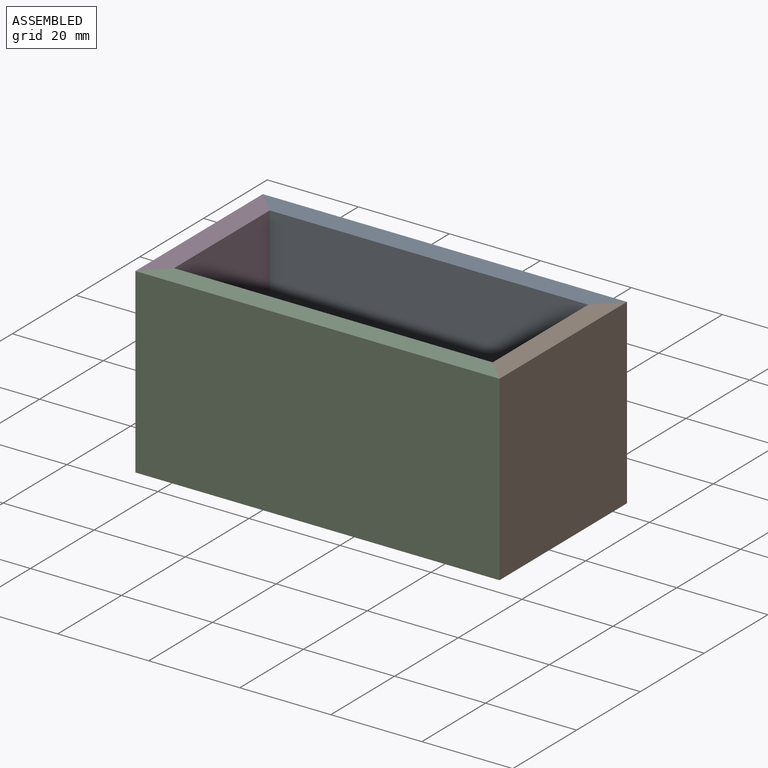
[diagram: assembled view]
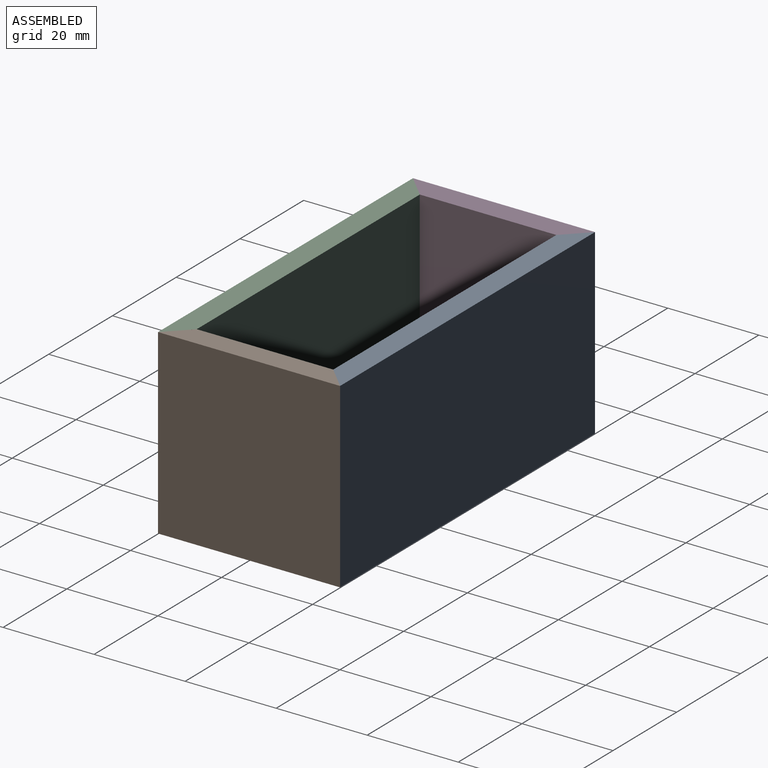
[diagram: assembled view, second angle]
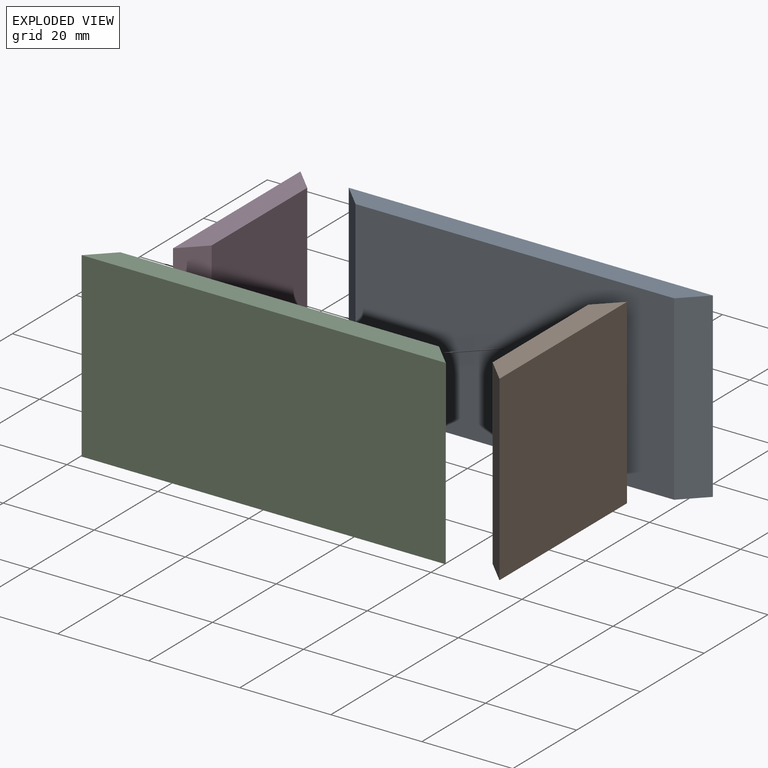
[diagram: exploded view]
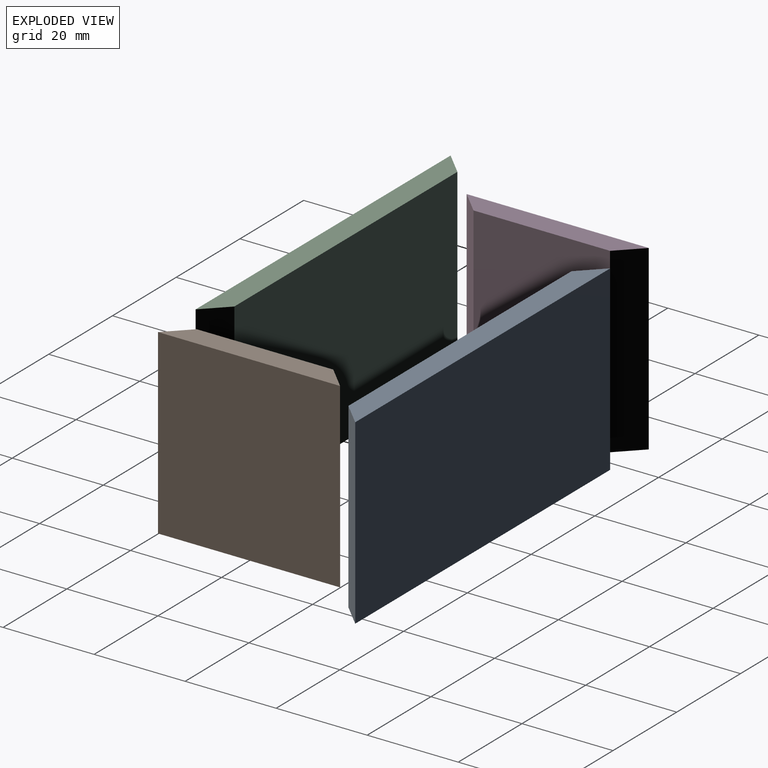
[diagram: exploded view, second angle]
ASSEMBLY  parts=4 mates=4
PART A: 6 faces, bbox 80x5x40 mm
  f0: plane 70x40mm, normal (0,-1,0), area 2800mm2, adj f1,f2,f4,f5
  f1: plane 80x5mm, normal (0,0,1), area 375mm2, adj f0,f3,f4,f5
  f2: plane 80x5mm, normal (0,0,-1), area 375mm2, adj f0,f3,f4,f5
  f3: plane 80x40mm, normal (0,1,0), area 3200mm2, adj f1,f2,f4,f5
  f4: plane 40x5mm, normal (-0.71,-0.71,0), area 282.8mm2, adj f0,f1,f2,f3
  f5: plane 40x5mm, normal (0.71,-0.71,0), area 282.8mm2, adj f0,f1,f2,f3
PART B: 6 faces, bbox 5x40x40 mm
  f0: plane 40x5mm, normal (0,0,1), area 175mm2, adj f2,f3,f4,f5
  f1: plane 40x5mm, normal (0,0,-1), area 175mm2, adj f2,f3,f4,f5
  f2: plane 40x30mm, normal (1,0,0), area 1200mm2, adj f0,f1,f4,f5
  f3: plane 40x40mm, normal (-1,0,0), area 1600mm2, adj f0,f1,f4,f5
  f4: plane 40x5mm, normal (0.71,0.71,0), area 282.8mm2, adj f0,f1,f2,f3
  f5: plane 40x5mm, normal (0.71,-0.71,0), area 282.8mm2, adj f0,f1,f2,f3
PART C: same geometry as A
PART D: same geometry as B
PLACE A t=(-25.13,-58.27,-21.91)mm
PLACE B rot(axis=(0,-1,0),180deg) t=(13.84,-35.62,10.27)mm
PLACE C rot(axis=(0,0,1),180deg) t=(-27.19,-98.27,-21.91)mm
PLACE D t=(-66.16,-35.62,-38.21)mm
MATE fastened C.f5 <-> D.f5  axis (-0.71,0.71,0) through (-61.16,-93.27,6.03)mm
MATE fastened B.f4 <-> A.f5  axis (-0.71,0.71,0) through (11.34,-60.77,-13.97)mm
MATE fastened A.f4 <-> D.f4  axis (-0.71,-0.71,0) through (-61.16,-63.27,6.03)mm
MATE fastened C.f4 <-> C.f4  axis (0.71,0.71,0) through (13.84,-98.27,6.03)mm
